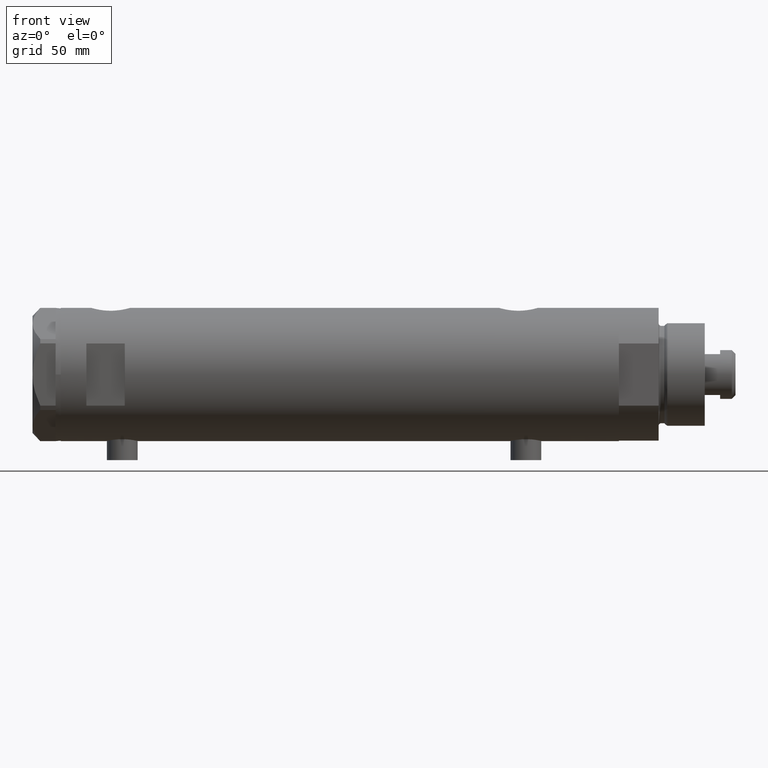
[diagram: clean part render]
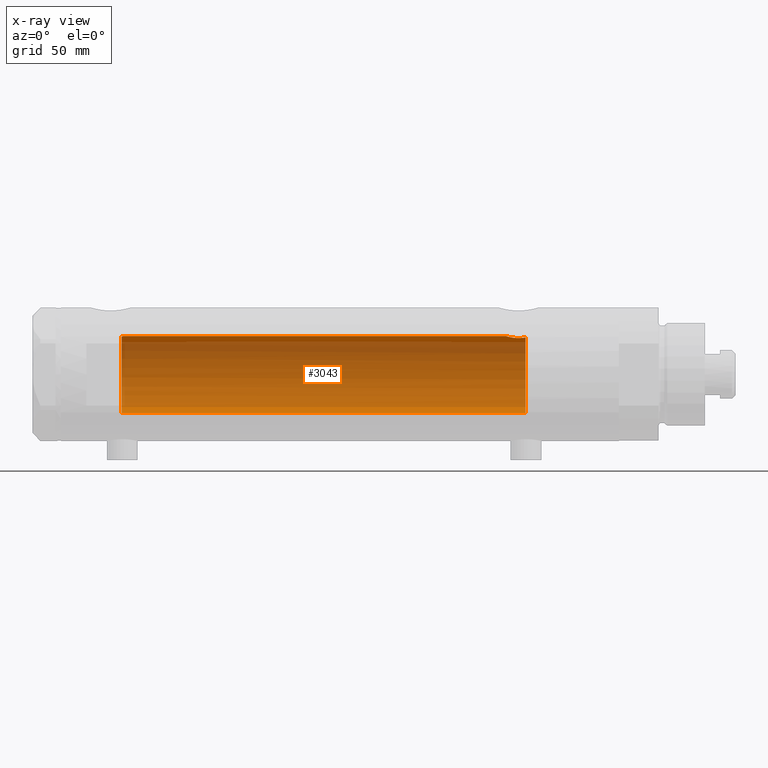
[diagram: x-ray — body ghosted, one internal face saturated and labeled with its STEP entity id]
A machine part, front view, then the same camera in x-ray: the body is ghosted and one INTERNAL B-rep face — a face not visible from any outside direction — is saturated and labeled: STEP entity #3043.
In plain terms, the highlighted cylindrical surface (partial cylindrical patch) has radius 15 mm, axis along (1, 0, -0).
Its self-contained STEP definition (entity closure, byte-faithful):
#15 = CARTESIAN_POINT ( 'NONE',  ( 14.23822651595894762, 4.719656459720485309, -70.95110225956648264 ) ) ;
#86 = VERTEX_POINT ( 'NONE', #2756 ) ;
#87 = DIRECTION ( 'NONE',  ( -0.000000000000000000, -0.000000000000000000, -1.000000000000000000 ) ) ;
#236 = VERTEX_POINT ( 'NONE', #2953 ) ;
#352 = CARTESIAN_POINT ( 'NONE',  ( 14.19413554982521575, 4.851369549374614287, -69.17746179061400369 ) ) ;
#441 = CARTESIAN_POINT ( 'NONE',  ( 14.42796195111116830, 4.108450791336243135, -67.10736184290816198 ) ) ;
#566 = CARTESIAN_POINT ( 'NONE',  ( 15.00000000000000000, 0.000000000000000000, 84.58500000000000796 ) ) ;
#705 = CARTESIAN_POINT ( 'NONE',  ( 14.81695028448457130, 2.344053258630414138, -65.48122781573721340 ) ) ;
#769 = CARTESIAN_POINT ( 'NONE',  ( 14.84719462287499780, 2.145357993387301931, -65.37798666051604357 ) ) ;
#799 = CARTESIAN_POINT ( 'NONE',  ( 14.33601656325283358, 4.414747171699213268, -67.69405684818109137 ) ) ;
#885 = VERTEX_POINT ( 'NONE', #951 ) ;
#889 = CARTESIAN_POINT ( 'NONE',  ( 14.46277203719950855, 3.978470183374510416, -72.54999999999999716 ) ) ;
#951 = CARTESIAN_POINT ( 'NONE',  ( 15.00000000000000000, 5.959273473684245944E-16, -64.88500000000000512 ) ) ;
#958 = VERTEX_POINT ( 'NONE', #889 ) ;
#998 = EDGE_CURVE ( 'NONE', #3686, #86, #1436, .T. ) ;
#1043 = VERTEX_POINT ( 'NONE', #4702 ) ;
#1053 = CARTESIAN_POINT ( 'NONE',  ( -15.00000000000000000, 0.000000000000000000, 108.9499999999999886 ) ) ;
#1088 = CARTESIAN_POINT ( 'NONE',  ( 15.00000000000000178, 0.2215872191885703835, -64.88500000000000512 ) ) ;
#1164 = EDGE_CURVE ( 'NONE', #3686, #236, #1455, .T. ) ;
#1183 = CARTESIAN_POINT ( 'NONE',  ( 14.19789541567449831, 4.839422427565549079, -70.29531557750244986 ) ) ;
#1192 = DIRECTION ( 'NONE',  ( 0.000000000000000000, 0.000000000000000000, -1.000000000000000000 ) ) ;
#1217 = EDGE_CURVE ( 'NONE', #885, #958, #3303, .T. ) ;
#1283 = ORIENTED_EDGE ( 'NONE', *, *, #1164, .T. ) ;
#1285 = CARTESIAN_POINT ( 'NONE',  ( 14.98404286071220781, 0.7911628595372716122, 84.63357750803341162 ) ) ;
#1360 = ORIENTED_EDGE ( 'NONE', *, *, #4634, .F. ) ;
#1432 = CARTESIAN_POINT ( 'NONE',  ( 0.000000000000000000, 0.000000000000000000, 85.15000000000000568 ) ) ;
#1436 = B_SPLINE_CURVE_WITH_KNOTS ( 'NONE', 3,
 ( #4607, #1595, #3089, #2407, #4632, #1285, #2059, #566 ),
 .UNSPECIFIED., .F., .F.,
 ( 4, 2, 2, 4 ),
 ( 0.02826119741494477131, 0.02885214443185063482, 0.02944309144875649834, 0.03062498548256823577 ),
 .UNSPECIFIED. ) ;
#1455 = CIRCLE ( 'NONE', #2678, 15.00000000000000000 ) ;
#1457 = CARTESIAN_POINT ( 'NONE',  ( 14.25987224063200465, 4.654266980155758127, -68.31645838593742326 ) ) ;
#1482 = CARTESIAN_POINT ( 'NONE',  ( 14.39420242489971358, 4.221147702577654037, -72.17871871185444377 ) ) ;
#1552 = ORIENTED_EDGE ( 'NONE', *, *, #1979, .T. ) ;
#1595 = CARTESIAN_POINT ( 'NONE',  ( 14.85285765243877343, 2.103108122960808402, 85.05873200114291421 ) ) ;
#1631 = DIRECTION ( 'NONE',  ( -0.000000000000000000, -0.000000000000000000, -1.000000000000000000 ) ) ;
#1633 = CARTESIAN_POINT ( 'NONE',  ( 0.000000000000000000, 0.000000000000000000, 108.9499999999999886 ) ) ;
#1768 = DIRECTION ( 'NONE',  ( 1.000000000000000000, 0.000000000000000000, 0.000000000000000000 ) ) ;
#1783 = VECTOR ( 'NONE', #4788, 1000.000000000000000 ) ;
#1787 = ORIENTED_EDGE ( 'NONE', *, *, #998, .F. ) ;
#1839 = CARTESIAN_POINT ( 'NONE',  ( 14.23996709707016173, 4.714409263334270683, -68.52876674044655658 ) ) ;
#1857 = CARTESIAN_POINT ( 'NONE',  ( 14.20808274384303616, 4.809639920165278859, -70.51496246579131366 ) ) ;
#1878 = CARTESIAN_POINT ( 'NONE',  ( 14.72004460873233000, 2.909758128378253428, -65.82614485536704763 ) ) ;
#1906 = AXIS2_PLACEMENT_3D ( 'NONE', #3743, #1192, #4140 ) ;
#1930 = CARTESIAN_POINT ( 'NONE',  ( 14.30778609824508329, 4.504821240468947607, -67.89964104205775186 ) ) ;
#1979 = EDGE_CURVE ( 'NONE', #1043, #958, #4051, .T. ) ;
#2027 = DIRECTION ( 'NONE',  ( -1.000000000000000000, 0.000000000000000000, 0.000000000000000000 ) ) ;
#2059 = CARTESIAN_POINT ( 'NONE',  ( 15.00000000000000533, 0.3998316629799377186, 84.58500000000003638 ) ) ;
#2242 = CARTESIAN_POINT ( 'NONE',  ( 14.97547159671690942, 0.8856171163179419326, -64.96107436056318818 ) ) ;
#2341 = CARTESIAN_POINT ( 'NONE',  ( 14.82638779339053947, 2.275571356824483082, 85.15000000000000568 ) ) ;
#2352 = CARTESIAN_POINT ( 'NONE',  ( 15.00000000000000000, 1.836970198721029589E-15, 108.9499999999999886 ) ) ;
#2404 = EDGE_LOOP ( 'NONE', ( #1360, #1787, #1283, #3168, #1552, #2530 ) ) ;
#2407 = CARTESIAN_POINT ( 'NONE',  ( 14.92022334814851980, 1.556082286439816276, 84.83634472570265928 ) ) ;
#2432 = DIRECTION ( 'NONE',  ( 0.000000000000000000, 0.000000000000000000, 1.000000000000000000 ) ) ;
#2530 = ORIENTED_EDGE ( 'NONE', *, *, #1217, .F. ) ;
#2649 = CARTESIAN_POINT ( 'NONE',  ( 14.42780822725581125, 4.105572710089623101, -72.36940228115442153 ) ) ;
#2678 = AXIS2_PLACEMENT_3D ( 'NONE', #1432, #2432, #1768 ) ;
#2756 = CARTESIAN_POINT ( 'NONE',  ( 15.00000000000000000, 0.000000000000000000, 84.58500000000000796 ) ) ;
#2947 = CARTESIAN_POINT ( 'NONE',  ( 14.33334483745703025, 4.423389780079200584, -71.78724945987950434 ) ) ;
#2953 = CARTESIAN_POINT ( 'NONE',  ( -15.00000000000000000, 0.000000000000000000, 85.15000000000000568 ) ) ;
#2970 = VECTOR ( 'NONE', #1631, 1000.000000000000000 ) ;
#2971 = CARTESIAN_POINT ( 'NONE',  ( 14.46277203719950855, 3.978470183374510416, -72.54999999999999716 ) ) ;
#3043 = ADVANCED_FACE ( 'NONE', ( #3108 ), #3456, .F. ) ;
#3089 = CARTESIAN_POINT ( 'NONE',  ( 14.87714698525761214, 1.924825815456619571, 84.97761219789977361 ) ) ;
#3108 = FACE_OUTER_BOUND ( 'NONE', #2404, .T. ) ;
#3168 = ORIENTED_EDGE ( 'NONE', *, *, #4212, .T. ) ;
#3303 = B_SPLINE_CURVE_WITH_KNOTS ( 'NONE', 3,
 ( #3715, #1088, #3437, #2242, #4523, #4089, #3756, #769, #705, #1878, #3392, #3737, #441, #799, #1930, #1457, #1839, #352, #3348, #1183, #1857, #15, #4109, #4848, #2947, #1482, #2649, #2971 ),
 .UNSPECIFIED., .F., .F.,
 ( 4, 2, 2, 2, 2, 2, 2, 2, 2, 2, 2, 2, 2, 4 ),
 ( 0.01531448496322442530, 0.01597936247866479920, 0.01664423999410517135, 0.01730911750954554698, 0.01797399502498591914, 0.01930375005586666692, 0.02063350508674741471, 0.02129838260218779034, 0.02196326011762816249, 0.02329301514850894844, 0.02395789266394934142, 0.02462277017938973439, 0.02528764769483013083, 0.02595252521027052381 ),
 .UNSPECIFIED. ) ;
#3348 = CARTESIAN_POINT ( 'NONE',  ( 14.18274079043653479, 4.883732009304972088, -69.63167541567706564 ) ) ;
#3392 = CARTESIAN_POINT ( 'NONE',  ( 14.64710079709034929, 3.249565827911967020, -66.10237283776274353 ) ) ;
#3437 = CARTESIAN_POINT ( 'NONE',  ( 14.99509227038106118, 0.4430293709771145894, -64.90006686301529726 ) ) ;
#3456 = CYLINDRICAL_SURFACE ( 'NONE', #4451, 15.00000000000000000 ) ;
#3686 = VERTEX_POINT ( 'NONE', #2341 ) ;
#3715 = CARTESIAN_POINT ( 'NONE',  ( 15.00000000000000000, 5.959273473684245944E-16, -64.88500000000000512 ) ) ;
#3737 = CARTESIAN_POINT ( 'NONE',  ( 14.49939476291675078, 3.855488469592456280, -66.74998822577916258 ) ) ;
#3743 = CARTESIAN_POINT ( 'NONE',  ( 0.000000000000000000, 0.000000000000000000, -72.54999999999999716 ) ) ;
#3756 = CARTESIAN_POINT ( 'NONE',  ( 14.90012193493785375, 1.740148100968099243, -65.20148967824481190 ) ) ;
#3903 = LINE ( 'NONE', #2352, #2970 ) ;
#4051 = CIRCLE ( 'NONE', #1906, 15.00000000000000000 ) ;
#4089 = CARTESIAN_POINT ( 'NONE',  ( 14.92306512695867227, 1.532295990539007446, -65.12730056478241636 ) ) ;
#4109 = CARTESIAN_POINT ( 'NONE',  ( 14.25831405531605078, 4.659025730769710272, -71.16798855846091953 ) ) ;
#4140 = DIRECTION ( 'NONE',  ( -1.000000000000000000, 0.000000000000000000, 0.000000000000000000 ) ) ;
#4212 = EDGE_CURVE ( 'NONE', #236, #1043, #4425, .T. ) ;
#4425 = LINE ( 'NONE', #1053, #1783 ) ;
#4451 = AXIS2_PLACEMENT_3D ( 'NONE', #1633, #87, #2027 ) ;
#4523 = CARTESIAN_POINT ( 'NONE',  ( 14.96070684509190940, 1.105917936056764583, -65.00719211967314948 ) ) ;
#4607 = CARTESIAN_POINT ( 'NONE',  ( 14.82638779339053947, 2.275571356824483082, 85.15000000000000568 ) ) ;
#4632 = CARTESIAN_POINT ( 'NONE',  ( 14.93895715383719569, 1.365440931094927590, 84.77638192761230584 ) ) ;
#4634 = EDGE_CURVE ( 'NONE', #86, #885, #3903, .T. ) ;
#4702 = CARTESIAN_POINT ( 'NONE',  ( -15.00000000000000000, 0.000000000000000000, -72.54999999999999716 ) ) ;
#4788 = DIRECTION ( 'NONE',  ( -0.000000000000000000, -0.000000000000000000, -1.000000000000000000 ) ) ;
#4848 = CARTESIAN_POINT ( 'NONE',  ( 14.30582738521794894, 4.511024637967016915, -71.58517547595721453 ) ) ;